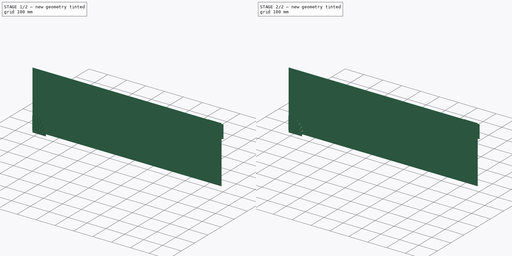
[diagram: build sequence overview — one tinted view per stage of 2, left to right]
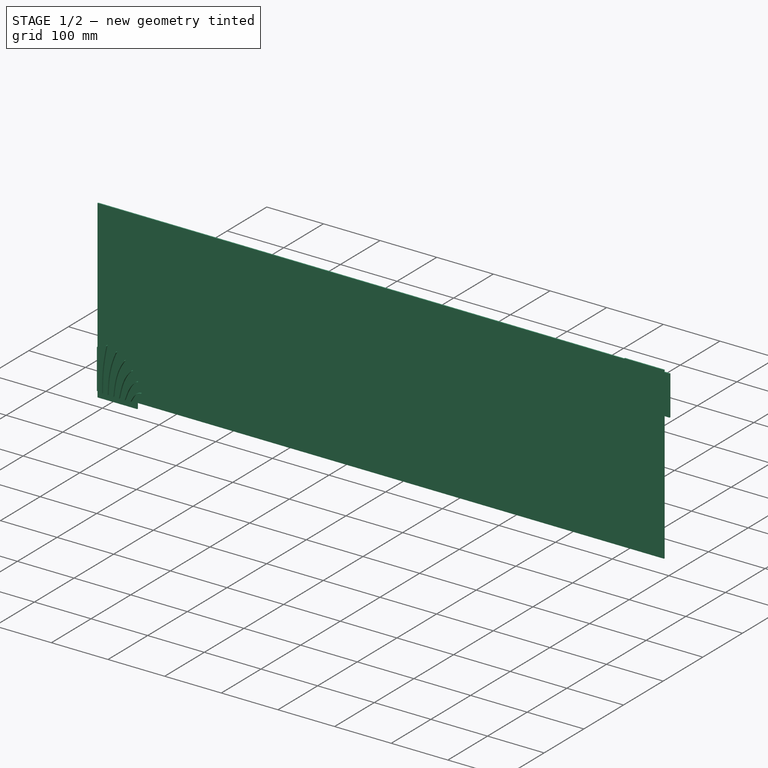
[diagram: stage 1 of 2 — iso view after this stage's code; geometry added in this stage tinted green]
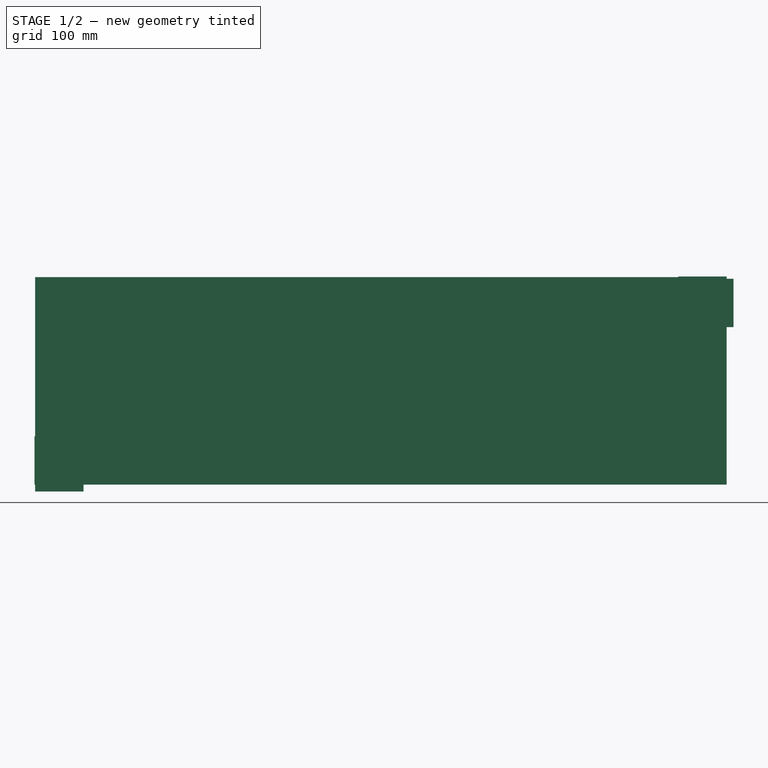
[diagram: stage 1 of 2 — front view after this stage's code; geometry added in this stage tinted green]
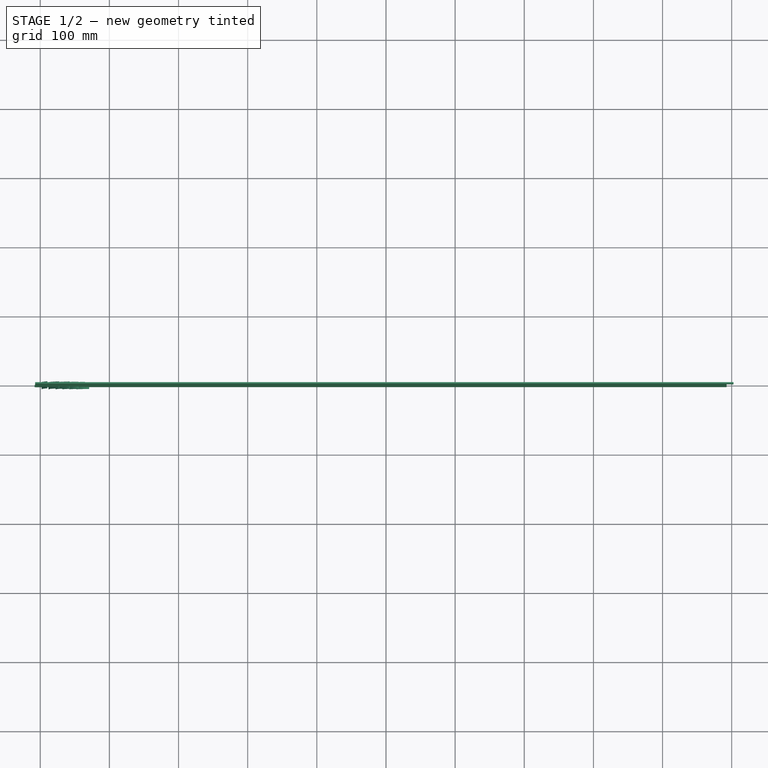
[diagram: stage 1 of 2 — top view after this stage's code; geometry added in this stage tinted green]
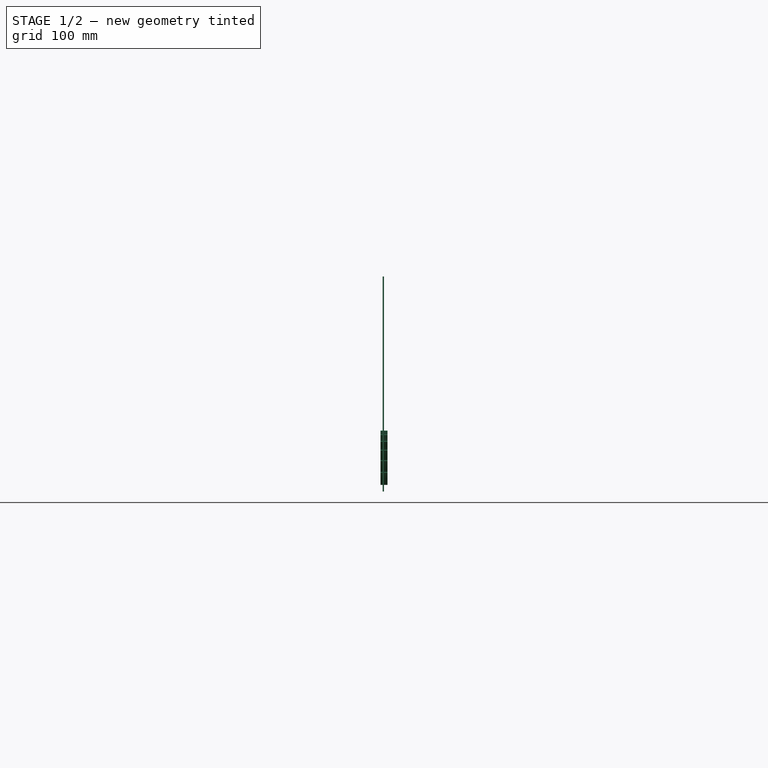
[diagram: stage 1 of 2 — right view after this stage's code; geometry added in this stage tinted green]
FCSTD DOCUMENT  (FreeCAD 0.20R29603 (Git))
Label: heat_exchanger_minimalist_model_v5
License: All rights reserved
LicenseURL: http://en.wikipedia.org/wiki/All_rights_reserved
objects: Part::Extrusion×3, Sketcher::SketchObject×2, PartDesign::Body×1, Part::Cut×1
note: 7 computed .brp shape members not serialized (recipe doc carries the construction recipe); baked Part::Feature solids carry a one-line shape summary decoded from their .brp

FEATURE [Sketcher::SketchObject] Sketch
  FullyConstrained = false
  MapMode = 5
  Placement = pos=(0,0,0) rot=(1,0,0;1.5708rad)
  Support = -> [XZ_Plane]
  sketch-geometry (18):
    g0: LineSegment StartX=-507.365 StartY=-157.791 StartZ=0 EndX=-437.365 EndY=-157.791 EndZ=0
    g1: LineSegment StartX=-437.365 StartY=-157.791 StartZ=0 EndX=-437.365 EndY=-147.791 EndZ=0
    g2: LineSegment StartX=-437.365 StartY=-147.791 StartZ=0 EndX=492.635 EndY=-147.791 EndZ=0
    g3: LineSegment StartX=492.635 StartY=153.209 StartZ=0 EndX=422.635 EndY=153.209 EndZ=0
    g4: LineSegment StartX=422.635 StartY=153.209 StartZ=0 EndX=422.635 EndY=152.209 EndZ=0
    g5: LineSegment StartX=422.635 StartY=152.209 StartZ=0 EndX=-507.365 EndY=152.209 EndZ=0
    g6: LineSegment StartX=-507.365 StartY=152.209 StartZ=0 EndX=492.635 EndY=-147.791 EndZ=0
    g7: LineSegment StartX=492.635 StartY=153.209 StartZ=0 EndX=-507.365 EndY=-157.791 EndZ=0
    g8: LineSegment StartX=-507.365 StartY=152.209 StartZ=0 EndX=-507.365 EndY=-77.7905 EndZ=0
    g9: LineSegment StartX=-507.365 StartY=-77.7905 StartZ=0 EndX=-508.365 EndY=-77.7905 EndZ=0
    g10: LineSegment StartX=492.635 StartY=-147.791 StartZ=0 EndX=492.635 EndY=79.9926 EndZ=0
    g11: LineSegment StartX=492.635 StartY=79.9926 StartZ=0 EndX=502.635 EndY=79.9926 EndZ=0
    g12: LineSegment StartX=492.635 StartY=149.993 StartZ=0 EndX=492.635 EndY=153.209 EndZ=0
    g13: LineSegment StartX=502.635 StartY=79.9926 StartZ=0 EndX=502.635 EndY=149.993 EndZ=0
    g14: LineSegment StartX=492.635 StartY=149.993 StartZ=0 EndX=502.635 EndY=149.993 EndZ=0
    g15: LineSegment StartX=-507.365 StartY=-147.791 StartZ=0 EndX=-507.365 EndY=-157.791 EndZ=0
    g16: LineSegment StartX=-508.365 StartY=-77.7905 StartZ=0 EndX=-508.365 EndY=-147.791 EndZ=0
    g17: LineSegment StartX=-508.365 StartY=-147.791 StartZ=0 EndX=-507.365 EndY=-147.791 EndZ=0
  constraints (51):
    c: Coincident(g15,g0)
    c: Horizontal(g0)
    c: Coincident(g0,g1)
    c: Vertical(g1)
    c: Coincident(g1,g2)
    c: Horizontal(g2)
    c: Coincident(g2,g10)
    c: Coincident(g12,g3)
    c: Horizontal(g3)
    c: Coincident(g3,g4)
    c: Coincident(g4,g5)
    c: Coincident(g5,g8)
    c: Horizontal(g5)
    c: Vertical(g4)
    c: Equal(g0,g3)
    c: Coincident(g6,g8)
    c: Coincident(g6,g2)
    c: Coincident(g7,g12)
    c: Coincident(g7,g15)
    c: PointOnObject(g-1,g7)
    c: PointOnObject(g-1,g6)
    c: DistanceX(g0,g0) = 70
    c: DistanceX(g2,g2) = 930
    c: DistanceY(g15,g8) = 310
    c: DistanceY(g1,g1) = 10
    c: Coincident(g9,g16)
    c: Coincident(g8,g9)
    c: Vertical(g8)
    c: Horizontal(g9)
    c: Coincident(g11,g13)
    c: Coincident(g10,g11)
    c: Vertical(g10)
    c: Horizontal(g11)
    c: Vertical(g12)
    c: Vertical(g13)
    c: Coincident(g14,g12)
    c: Coincident(g14,g13)
    c: Horizontal(g14)
    c: DistanceX(g14,g14) = 10
    c: Equal(g14,g11)
    c: Equal(g13,g3)
    c: Coincident(g17,g15)
    c: Vertical(g15)
    c: Coincident(g16,g17)
    c: Vertical(g16)
    c: Horizontal(g17)
    c: Equal(g9,g17)
    c: Equal(g15,g1)
    c: DistanceX(g17,g17) = 1
    c: Equal(g16,g0)
    c: DistanceY(g4,g4) = 1
FEATURE [PartDesign::Body] Body
  Group = -> [Sketch]
  Origin = -> Origin
FEATURE [Sketcher::SketchObject] Sketch002
  Base_da = 2
  FullyConstrained = true
  MapMode = 5
  Support = -> [XY_Plane001]
  expr: Constraints[100] = 5 * Base_da
  expr: Constraints[101] = 4 * Base_da
  expr: Constraints[102] = 3 * Base_da
  expr: Constraints[103] = 2 * Base_da
  expr: Constraints[105] = Base_da
  sketch-geometry (43):
    g0: LineSegment StartX=10 StartY=0 StartZ=0 EndX=10 EndY=10 EndZ=0
    g1: LineSegment StartX=20 StartY=0 StartZ=0 EndX=20.349 EndY=9.99391 EndZ=0
    g2: LineSegment StartX=10 StartY=0 StartZ=0 EndX=20 EndY=0 EndZ=0
    g3: LineSegment StartX=30 StartY=0 StartZ=0 EndX=31.0453 EndY=9.94522 EndZ=0
    g4: LineSegment StartX=20 StartY=0 StartZ=0 EndX=30 EndY=0 EndZ=0
    g5: LineSegment StartX=40 StartY=0 StartZ=0 EndX=42.0791 EndY=9.78148 EndZ=0
    g6: LineSegment StartX=30 StartY=0 StartZ=0 EndX=40 EndY=0 EndZ=0
    g7: LineSegment StartX=50 StartY=0 StartZ=0 EndX=53.4202 EndY=9.39693 EndZ=0
    g8: LineSegment StartX=40 StartY=0 StartZ=0 EndX=50 EndY=0 EndZ=0
    g9: LineSegment StartX=60 StartY=0 StartZ=0 EndX=65 EndY=8.66025 EndZ=0
    g10: LineSegment StartX=50 StartY=0 StartZ=0 EndX=60 EndY=0 EndZ=0
    g11: ArcOfCircle CenterX=0 CenterY=0 CenterZ=0 NormalX=0 NormalY=0 NormalZ=1 AngleXU=0 Radius=80 StartAngle=0 EndAngle=1.5708
    g12: ArcOfParabola CenterX=68.3381 CenterY=12.9026 CenterZ=0 NormalX=0 NormalY=0 NormalZ=1 Focal=8.86174 AngleXU=-0.816138 StartAngle=-5.33797 EndAngle=10.3906
    g13: GeomPoint X=74.4087 Y=6.44675 Z=0
    g14: LineSegment StartX=68.3381 StartY=12.9026 StartZ=0 EndX=74.4087 EndY=6.44675 EndZ=0
    g15: ArcOfParabola CenterX=75.2671 CenterY=35.9454 CenterZ=0 NormalX=0 NormalY=0 NormalZ=1 Focal=10.5647 AngleXU=-1.28196 StartAngle=-28.5038 EndAngle=-3.40911
    g16: GeomPoint X=78.2762 Y=25.8183 Z=0
    g17: LineSegment StartX=75.2671 StartY=35.9454 StartZ=0 EndX=78.2762 EndY=25.8183 EndZ=0
    g18: ArcOfParabola CenterX=69.0582 CenterY=53.9908 CenterZ=0 NormalX=0 NormalY=0 NormalZ=1 Focal=16.8881 AngleXU=-1.12039 StartAngle=-43.5341 EndAngle=-7.65215
    g19: GeomPoint X=76.4101 Y=38.7869 Z=0
    g20: LineSegment StartX=69.0582 StartY=53.9908 StartZ=0 EndX=76.4101 EndY=38.7869 EndZ=0
    g21: ArcOfParabola CenterX=58.9375 CenterY=71.8255 CenterZ=0 NormalX=0 NormalY=0 NormalZ=1 Focal=31.4249 AngleXU=-0.875633 StartAngle=-61.0548 EndAngle=-12.8996
    g22: GeomPoint X=79.0655 Y=47.6928 Z=0
    g23: LineSegment StartX=58.9375 StartY=71.8255 StartZ=0 EndX=79.0655 EndY=47.6928 EndZ=0
    g24: ArcOfParabola CenterX=41.678 CenterY=84.7017 CenterZ=0 NormalX=0 NormalY=0 NormalZ=1 Focal=64.3816 AngleXU=-0.560144 StartAngle=-74.6231 EndAngle=-14.3967
    g25: GeomPoint X=96.2207 Y=50.4952 Z=0
    g26: LineSegment StartX=41.678 StartY=84.7017 StartZ=0 EndX=96.2207 EndY=50.4952 EndZ=0
    g27: ArcOfParabola CenterX=10.3255 CenterY=-3.7979 CenterZ=0 NormalX=0 NormalY=0 NormalZ=1 Focal=146.058 AngleXU=0.0471993 StartAngle=13.7979 EndAngle=81.3483
    g28: GeomPoint X=156.22 Y=3.09336 Z=0
    g29: LineSegment StartX=10.3255 StartY=-3.7979 StartZ=0 EndX=156.22 EndY=3.09336 EndZ=0
    g30: LineSegment StartX=17.8017 StartY=77.9942 StartZ=0 EndX=3.6e-15 EndY=80 EndZ=0
    g31: LineSegment StartX=17.8017 StartY=77.9942 StartZ=0 EndX=34.7107 EndY=72.0775 EndZ=0
    g32: LineSegment StartX=34.7107 StartY=72.0775 StartZ=0 EndX=49.8792 EndY=62.5465 EndZ=0
    g33: LineSegment StartX=49.8792 StartY=62.5465 StartZ=0 EndX=62.5465 EndY=49.8792 EndZ=0
    g34: LineSegment StartX=62.5465 StartY=49.8792 StartZ=0 EndX=72.0775 EndY=34.7107 EndZ=0
    g35: LineSegment StartX=77.9942 StartY=17.8017 StartZ=0 EndX=72.0775 EndY=34.7107 EndZ=0
    g36: LineSegment StartX=77.9942 StartY=17.8017 StartZ=0 EndX=80 EndY=0 EndZ=0
    g37: LineSegment StartX=17.8017 StartY=77.9942 StartZ=0 EndX=20.0269 EndY=87.7435 EndZ=0
    g38: LineSegment StartX=77.9942 StartY=17.8017 StartZ=0 EndX=87.7435 EndY=20.0269 EndZ=0
    g39: LineSegment StartX=72.0775 StartY=34.7107 StartZ=0 EndX=81.0872 EndY=39.0495 EndZ=0
    g40: LineSegment StartX=62.5465 StartY=49.8792 StartZ=0 EndX=70.3648 EndY=56.1141 EndZ=0
    g41: LineSegment StartX=49.8792 StartY=62.5465 StartZ=0 EndX=56.1141 EndY=70.3648 EndZ=0
    g42: LineSegment StartX=34.7107 StartY=72.0775 StartZ=0 EndX=39.0495 EndY=81.0872 EndZ=0
  constraints (106):
    c: PointOnObject(g0,g-1)
    c: DistanceX(g-1,g0) = 10
    c: Coincident(g0,g2)
    c: Coincident(g1,g2)
    c: Distance(g2) = 10
    c: Coincident(g1,g4)
    c: Coincident(g3,g4)
    c: Equal(g2,g4)
    c: Parallel(g4,g2)
    c: Coincident(g3,g6)
    c: Coincident(g5,g6)
    c: Equal(g2,g6)
    c: Parallel(g6,g2)
    c: Coincident(g5,g8)
    c: Coincident(g7,g8)
    c: Equal(g2,g8)
    c: Parallel(g8,g2)
    c: Coincident(g7,g10)
    c: Coincident(g9,g10)
    c: Equal(g2,g10)
    c: Parallel(g10,g2)
    c: PointOnObject(g1,g-1)
    c: InternalAlignment(g13,g12)
    c: Coincident(g13,g14)
    c: Coincident(g12,g14)
    c: InternalAlignment(g16,g15)
    c: Coincident(g16,g17)
    c: Coincident(g15,g17)
    c: Tangent(g12,g9) = -1.5708
    c: Tangent(g15,g7) = -1.5708
    c: Equal(g9,g7)
    c: Equal(g7,g5)
    c: Equal(g5,g3)
    c: Equal(g3,g1)
    c: Equal(g1,g0)
    c: DistanceY(g0,g0) = 10
    c: PointOnObject(g15,g11)
    c: DistanceX(g11,g11) = 80
    c: Coincident(g-1,g11)
    c: PointOnObject(g11,g-1)
    c: PointOnObject(g12,g11)
    c: InternalAlignment(g19,g18)
    c: Coincident(g19,g20)
    c: Coincident(g18,g20)
    c: PointOnObject(g18,g11)
    c: InternalAlignment(g22,g21)
    c: Coincident(g22,g23)
    c: Coincident(g21,g23)
    c: PointOnObject(g21,g11)
    c: InternalAlignment(g25,g24)
    c: Coincident(g25,g26)
    c: Coincident(g24,g26)
    c: PointOnObject(g24,g11)
    c: InternalAlignment(g28,g27)
    c: Coincident(g28,g29)
    c: Coincident(g27,g29)
    c: PointOnObject(g27,g11)
    c: Tangent(g18,g5) = -1.5708
    c: Tangent(g21,g3) = -1.5708
    c: Tangent(g24,g1) = -1.5708
    c: Tangent(g27,g0) = -1.5708
    c: PointOnObject(g11,g-2)
    c: Coincident(g30,g27)
    c: Coincident(g30,g11)
    c: Coincident(g31,g27)
    c: Coincident(g31,g24)
    c: Coincident(g32,g24)
    c: Coincident(g32,g21)
    c: Coincident(g33,g21)
    c: Coincident(g33,g18)
    c: Coincident(g34,g18)
    c: Coincident(g34,g15)
    c: Coincident(g35,g12)
    c: Coincident(g35,g15)
    c: Coincident(g36,g12)
    c: Coincident(g36,g11)
    c: Equal(g36,g35)
    c: Equal(g35,g34)
    c: Equal(g33,g34)
    c: Equal(g32,g33)
    c: Equal(g31,g32)
    c: Equal(g30,g31)
    c: Perpendicular(g11,g38)
    c: Tangent(g38,g12) = -1.5708
    c: Perpendicular(g11,g39)
    c: Tangent(g39,g15) = -1.5708
    c: Perpendicular(g11,g40)
    c: Tangent(g40,g18) = -1.5708
    c: Perpendicular(g11,g41)
    c: Perpendicular(g11,g42)
    c: Tangent(g42,g24) = -1.5708
    c: Tangent(g41,g21) = -1.5708
    c: Equal(g38,g39)
    c: Equal(g39,g40)
    c: Equal(g40,g41)
    c: Equal(g41,g42)
    c: Equal(g42,g37)
    c: Distance(g37) = 10
    c: Tangent(g37,g27) = -1.5708
    c: Perpendicular(g11,g37)
    c: Angle(g9,g7) = 0.174533
    c: Angle(g7,g5) = 0.139626
    c: Angle(g5,g3) = 0.10472
    c: Angle(g3,g1) = 0.0698132
    c: Vertical(g0)
    c: Angle(g1,g0) = 0.0349066
FEATURE [Part::Extrusion] Extrude001
  Base = -> Sketch002
  Dir = (1,-1,0)
  DirMode = 0
  FaceMakerClass = Part::FaceMakerBullseye
  LengthFwd = 1
  LengthRev = 0
  Placement = pos=(-508,5,-147.5) rot=(1,0,0;1.5708rad)
  Solid = false
  Symmetric = false
FEATURE [Part::Extrusion] Extrude
  Base = -> Extrude001
  Dir = (0,-1,-2e-16)
  DirMode = 2
  FaceMakerClass = Part::FaceMakerBullseye
  LengthFwd = 10
  LengthRev = 0
  Solid = false
  Symmetric = false
FEATURE [Part::Extrusion] Extrude002
  Base = -> Sketch
  Dir = (0,-1,-2e-16)
  DirMode = 2
  FaceMakerClass = Part::FaceMakerBullseye
  LengthFwd = 2
  LengthRev = 0
  Solid = true
  Symmetric = false
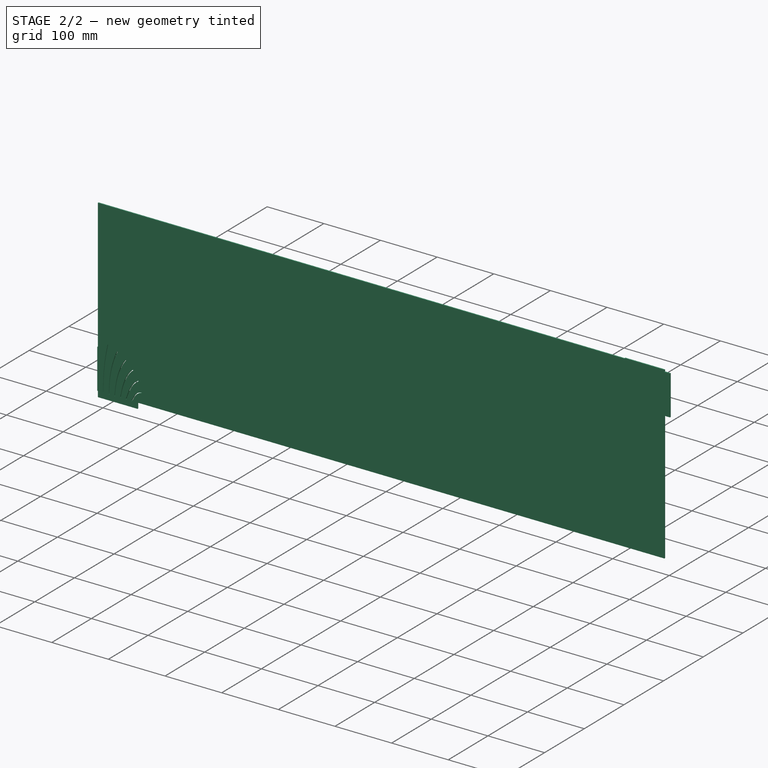
[diagram: stage 2 of 2 — iso view after this stage's code; geometry added in this stage tinted green]
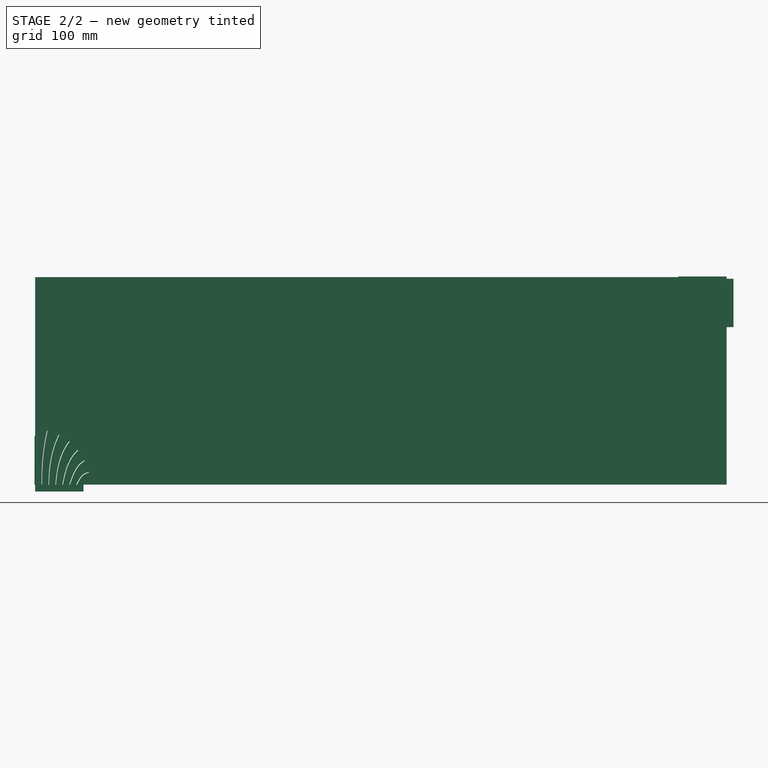
[diagram: stage 2 of 2 — front view after this stage's code; geometry added in this stage tinted green]
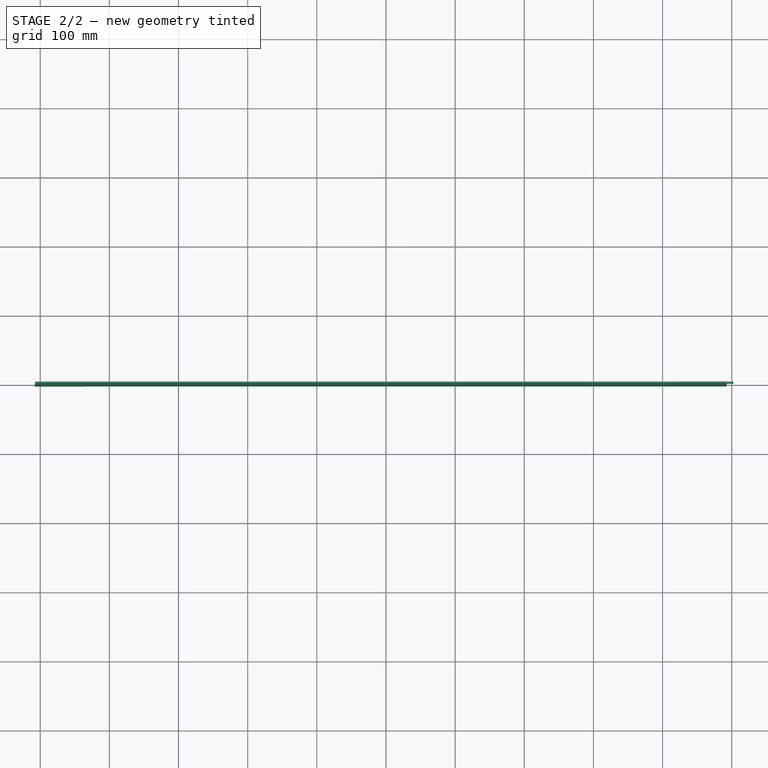
[diagram: stage 2 of 2 — top view after this stage's code; geometry added in this stage tinted green]
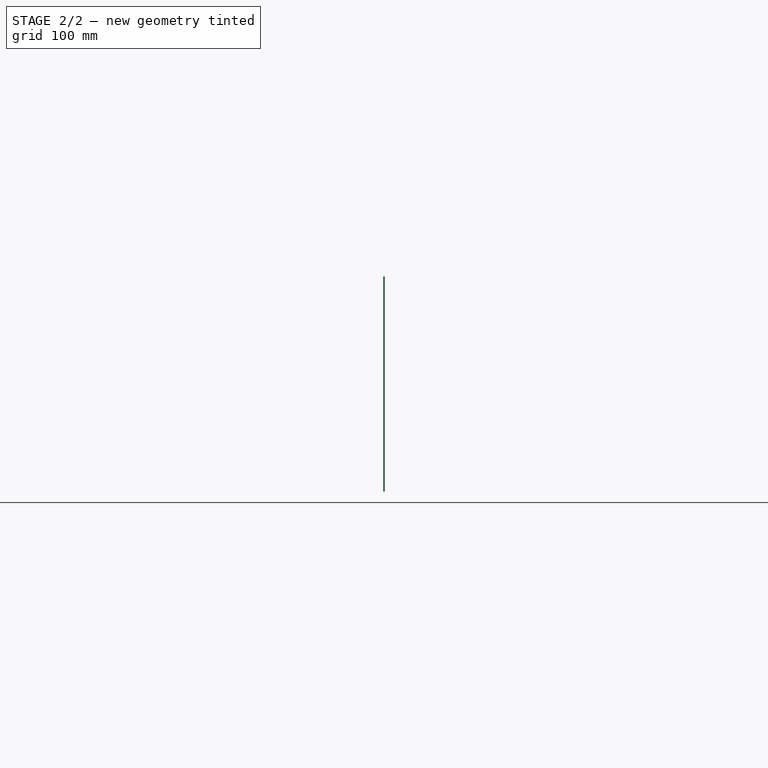
[diagram: stage 2 of 2 — right view after this stage's code; geometry added in this stage tinted green]
FEATURE [Part::Cut] Cut
  Base = -> Extrude002
  Tool = -> Extrude
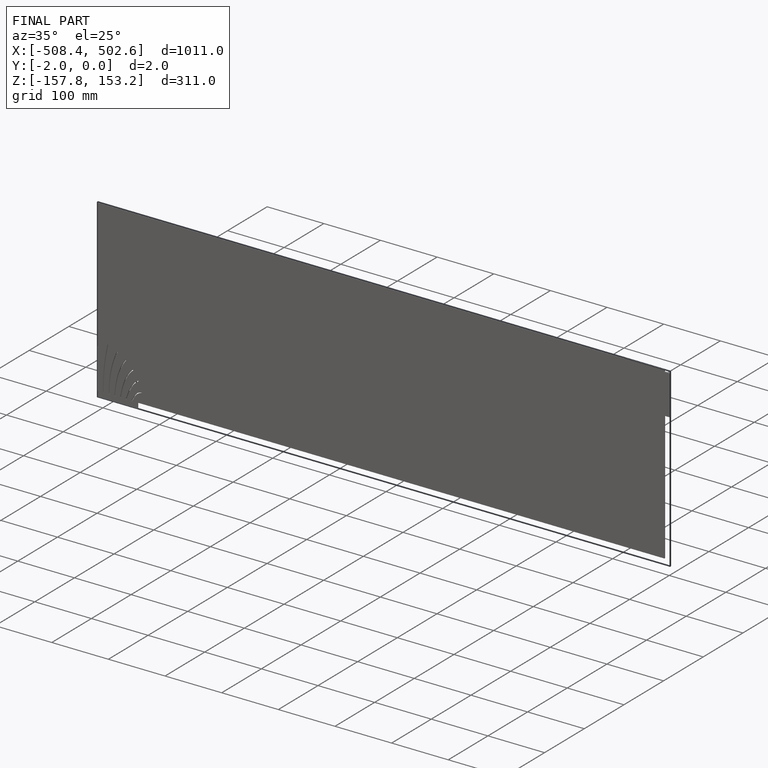
[diagram: finished part — iso view with bounding-box wireframe]
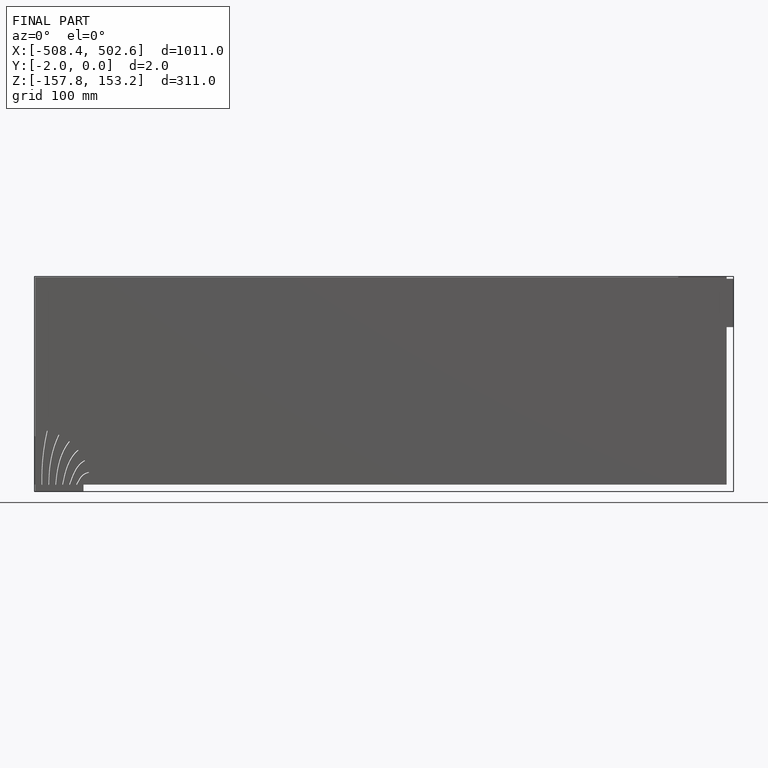
[diagram: finished part — front view with bounding-box wireframe]
